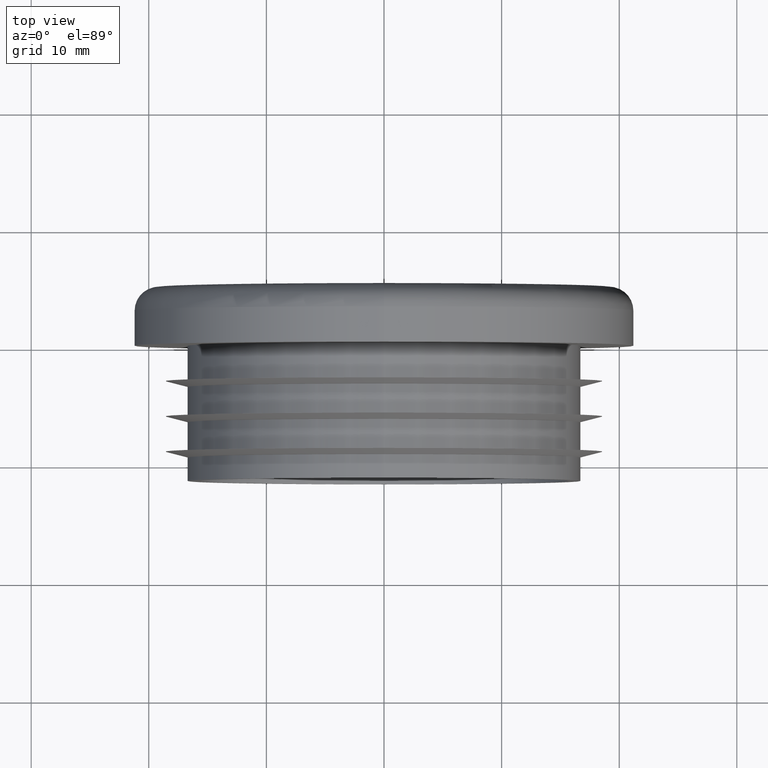
[diagram: clean part render]
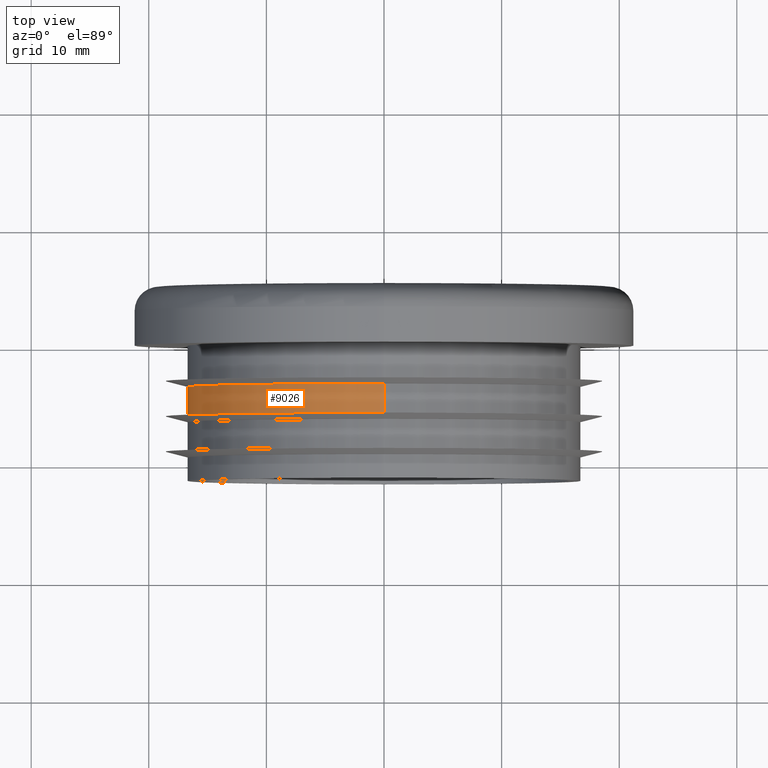
[diagram: same view with one face highlighted and labeled with its STEP entity id]
A machine part, top view. The second image highlights one B-rep face of the part: STEP entity #9026.
In plain terms, the highlighted cylindrical surface (partial cylindrical patch) has radius 16.7 mm, axis along (-0, 1, -0).
Its self-contained STEP definition (entity closure, byte-faithful):
#112 = DIRECTION ( 'NONE',  ( 0.0000000000000000000, 0.0000000000000000000, 1.000000000000000000 ) ) ;
#156 = VECTOR ( 'NONE', #8237, 1000.000000000000000 ) ;
#1118 = LINE ( 'NONE', #3105, #7482 ) ;
#1184 = FACE_OUTER_BOUND ( 'NONE', #9914, .T. ) ;
#1635 = ORIENTED_EDGE ( 'NONE', *, *, #7972, .F. ) ;
#3005 = AXIS2_PLACEMENT_3D ( 'NONE', #3989, #9552, #4830 ) ;
#3037 = VERTEX_POINT ( 'NONE', #7131 ) ;
#3105 = CARTESIAN_POINT ( 'NONE',  ( 2.045160154576079800E-015, -11.50000000000000000, -16.69999999999999900 ) ) ;
#3110 = ORIENTED_EDGE ( 'NONE', *, *, #4401, .T. ) ;
#3192 = CYLINDRICAL_SURFACE ( 'NONE', #6475, 16.69999999999999900 ) ;
#3772 = EDGE_CURVE ( 'NONE', #3037, #10264, #6097, .T. ) ;
#3888 = DIRECTION ( 'NONE',  ( 0.0000000000000000000, 0.0000000000000000000, 1.000000000000000000 ) ) ;
#3989 = CARTESIAN_POINT ( 'NONE',  ( 0.0000000000000000000, -5.999999999999999100, 0.0000000000000000000 ) ) ;
#4153 = CARTESIAN_POINT ( 'NONE',  ( 0.0000000000000000000, -11.50000000000000000, 16.69999999999999900 ) ) ;
#4401 = EDGE_CURVE ( 'NONE', #6080, #10264, #9128, .T. ) ;
#4485 = CARTESIAN_POINT ( 'NONE',  ( 0.0000000000000000000, -3.500000000000000900, 16.69999999999999900 ) ) ;
#4531 = CARTESIAN_POINT ( 'NONE',  ( 2.045160154576079800E-015, -5.999999999999999100, -16.69999999999999900 ) ) ;
#4830 = DIRECTION ( 'NONE',  ( 0.0000000000000000000, 0.0000000000000000000, -1.000000000000000000 ) ) ;
#5185 = DIRECTION ( 'NONE',  ( -0.0000000000000000000, 1.000000000000000000, -0.0000000000000000000 ) ) ;
#6080 = VERTEX_POINT ( 'NONE', #7768 ) ;
#6097 = CIRCLE ( 'NONE', #8654, 16.69999999999999900 ) ;
#6422 = VERTEX_POINT ( 'NONE', #4531 ) ;
#6475 = AXIS2_PLACEMENT_3D ( 'NONE', #10180, #9461, #3888 ) ;
#7131 = CARTESIAN_POINT ( 'NONE',  ( 2.045160154576079800E-015, -3.500000000000000900, -16.69999999999999900 ) ) ;
#7256 = CIRCLE ( 'NONE', #3005, 16.69999999999999900 ) ;
#7482 = VECTOR ( 'NONE', #7966, 1000.000000000000000 ) ;
#7768 = CARTESIAN_POINT ( 'NONE',  ( 0.0000000000000000000, -5.999999999999999100, 16.69999999999999900 ) ) ;
#7966 = DIRECTION ( 'NONE',  ( -0.0000000000000000000, 1.000000000000000000, -0.0000000000000000000 ) ) ;
#7972 = EDGE_CURVE ( 'NONE', #6080, #6422, #7256, .T. ) ;
#8104 = ORIENTED_EDGE ( 'NONE', *, *, #8553, .F. ) ;
#8237 = DIRECTION ( 'NONE',  ( -0.0000000000000000000, 1.000000000000000000, -0.0000000000000000000 ) ) ;
#8553 = EDGE_CURVE ( 'NONE', #6422, #3037, #1118, .T. ) ;
#8654 = AXIS2_PLACEMENT_3D ( 'NONE', #9867, #5185, #112 ) ;
#9026 = ADVANCED_FACE ( 'NONE', ( #1184 ), #3192, .T. ) ;
#9128 = LINE ( 'NONE', #4153, #156 ) ;
#9461 = DIRECTION ( 'NONE',  ( -0.0000000000000000000, 1.000000000000000000, -0.0000000000000000000 ) ) ;
#9552 = DIRECTION ( 'NONE',  ( 0.0000000000000000000, -1.000000000000000000, 0.0000000000000000000 ) ) ;
#9727 = ORIENTED_EDGE ( 'NONE', *, *, #3772, .F. ) ;
#9867 = CARTESIAN_POINT ( 'NONE',  ( 0.0000000000000000000, -3.500000000000000900, 0.0000000000000000000 ) ) ;
#9914 = EDGE_LOOP ( 'NONE', ( #8104, #1635, #3110, #9727 ) ) ;
#10180 = CARTESIAN_POINT ( 'NONE',  ( 0.0000000000000000000, -11.50000000000000000, 0.0000000000000000000 ) ) ;
#10264 = VERTEX_POINT ( 'NONE', #4485 ) ;